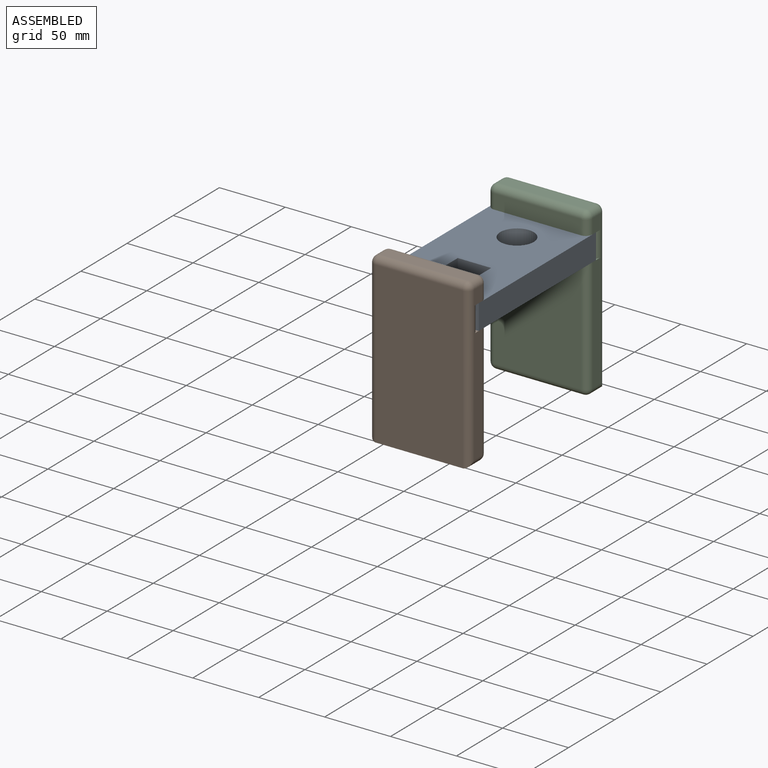
[diagram: assembled view]
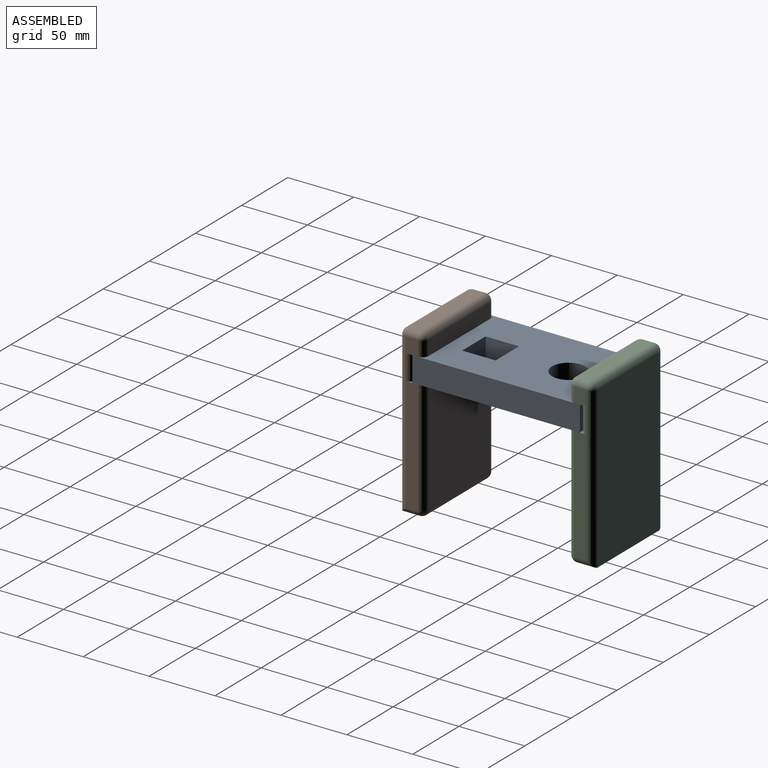
[diagram: assembled view, second angle]
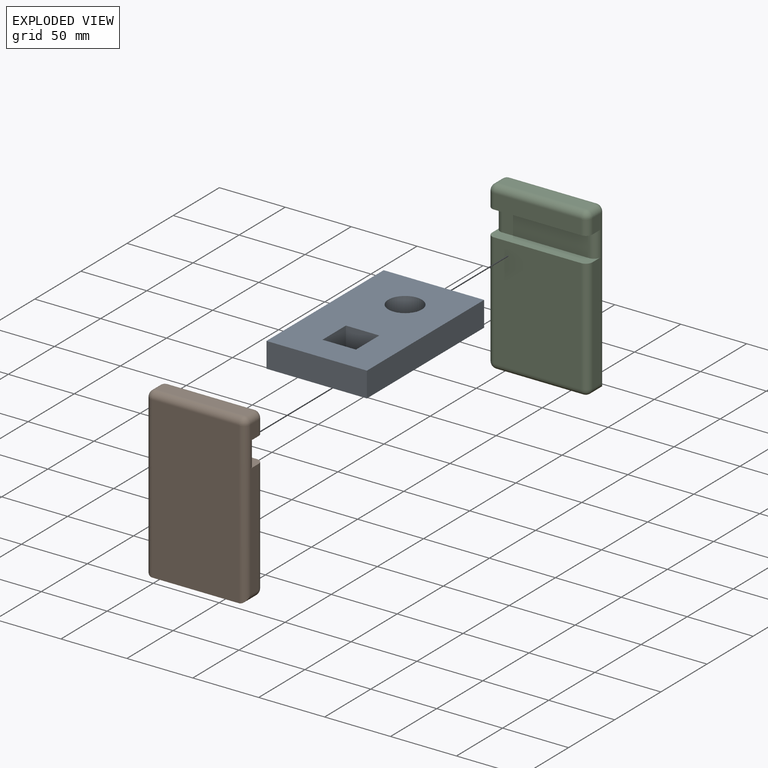
[diagram: exploded view]
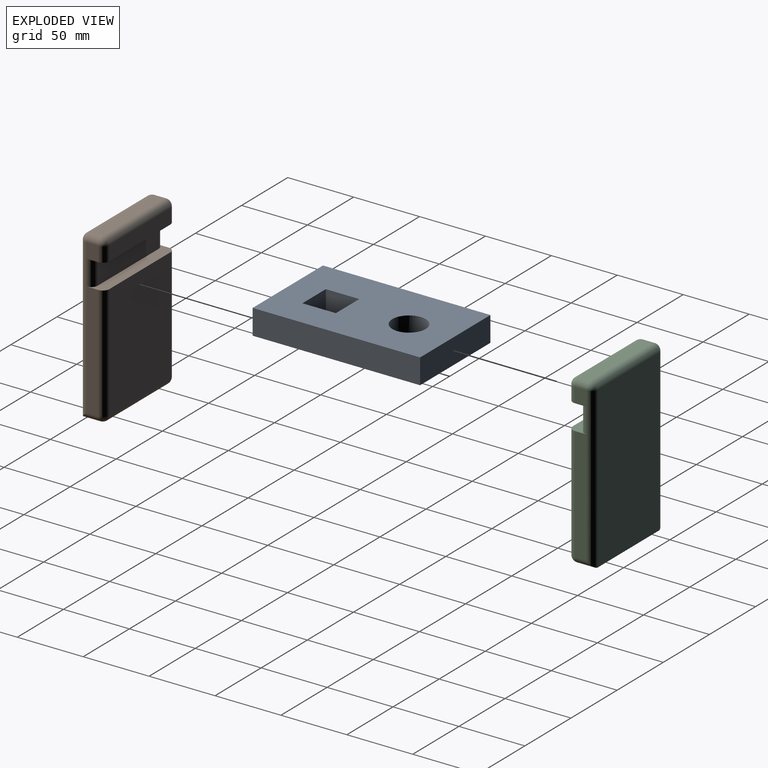
[diagram: exploded view, second angle]
ASSEMBLY  parts=3 mates=2
PART A: 11 faces, bbox 76.2x19.1x127 mm
  f0: plane 127x19.05mm, normal (-1,0,0), area 2419.3mm2, adj f1,f3,f4,f5
  f1: plane 76.2x19.05mm, normal (0,0,-1), area 1451.6mm2, adj f0,f2,f4,f5
  f2: plane 127x19.05mm, normal (1,0,0), area 2419.3mm2, adj f1,f3,f4,f5
  f3: plane 76.2x19.05mm, normal (0,0,1), area 1451.6mm2, adj f0,f2,f4,f5
  f4: plane 127x76.2mm, normal (0,-1,0), area 8525.5mm2, adj f0,f1,f2,f3,f6,f7,f8,f9
  f5: plane 127x76.2mm, normal (0,1,0), area 8525.5mm2, adj f0,f1,f2,f3,f6,f7,f8,f9
  f6: cylinder r=12.7mm len=25.4mm, axis (0,-1,0), area 1520.1mm2, adj f4,f5
  f7: plane 25.4x19.05mm, normal (-1,0,0), area 483.9mm2, adj f4,f5,f8,f10
  f8: plane 25.4x19.05mm, normal (0,0,-1), area 483.9mm2, adj f4,f5,f7,f9
  f9: plane 25.4x19.05mm, normal (1,0,0), area 483.9mm2, adj f4,f5,f8,f10
  f10: plane 25.4x19.05mm, normal (0,0,1), area 483.9mm2, adj f4,f5,f7,f9
PART B: 31 faces, bbox 19.1x76.2x127 mm
  f0: plane 11.21x8.89mm, normal (0,1,0), area 99.7mm2, adj f10,f17,f23,f24
  f1: plane 11.21x8.89mm, normal (0,-1,0), area 99.7mm2, adj f10,f19,f27,f30
  f2: plane 86.58x66.04mm, normal (1,0,0), area 5717.6mm2, adj f9,f12,f14,f15
  f3: plane 86.58x8.89mm, normal (0,-1,0), area 769.7mm2, adj f9,f14,f19,f20
  f4: plane 66.04x8.89mm, normal (0,0,1), area 587.1mm2, adj f22,f23,f27,f28
  f5: plane 121.92x66.04mm, normal (-1,0,0), area 8051.6mm2, adj f6,f17,f19,f22
  f6: plane 66.04x13.97mm, normal (0,0,-1), area 922.6mm2, adj f5,f15,f16,f20
  f7: plane 66.04x11.21mm, normal (1,0,0), area 740.4mm2, adj f10,f24,f28,f30
  f8: plane 86.58x8.89mm, normal (0,1,0), area 769.7mm2, adj f9,f12,f16,f17
  f9: plane 76.2x13.97mm, normal (0,0,1), area 677.4mm2, adj f2,f3,f8,f11,f12,f14,f17,f19
  f10: plane 76.2x13.97mm, normal (0,0,-1), area 677.4mm2, adj f0,f1,f7,f11,f17,f19,f24,f30
  f11: plane 66.04x19.05mm, normal (1,0,0), area 1258.1mm2, adj f9,f10,f17,f19
  f12: cylinder r=5.08mm len=86.58mm, axis (0,0,1), area 690.9mm2, adj f2,f8,f9,f13
  f13: sphere r=5.08mm, area 40.5mm2, adj f12,f15,f16
  f14: cylinder r=5.08mm len=86.58mm, axis (0,0,-1), area 690.9mm2, adj f2,f3,f9,f18
  f15: cylinder r=5.08mm len=66.04mm, axis (0,1,0), area 527mm2, adj f2,f6,f13,f18
  f16: cylinder r=5.08mm len=13.97mm, axis (1,0,0), area 96.7mm2, adj f6,f8,f13,f17
  f17: cylinder r=5.08mm len=121.92mm, axis (0,0,-1), area 1110.2mm2, adj f0,f5,f8,f9,f10,f11,f16,f21
  f18: sphere r=5.08mm, area 40.5mm2, adj f14,f15,f20
  f19: cylinder r=5.08mm len=121.92mm, axis (0,0,1), area 1110.2mm2, adj f1,f3,f5,f9,f10,f11,f20,f25
  f20: cylinder r=5.08mm len=13.97mm, axis (-1,0,0), area 96.7mm2, adj f3,f6,f18,f19
  f21: sphere r=5.08mm, area 40.5mm2, adj f17,f22,f23
  f22: cylinder r=5.08mm len=66.04mm, axis (0,1,0), area 527mm2, adj f4,f5,f21,f25
  f23: cylinder r=5.08mm len=8.89mm, axis (-1,0,0), area 70.9mm2, adj f0,f4,f21,f26
  f24: cylinder r=5.08mm len=11.21mm, axis (0,0,1), area 89.5mm2, adj f0,f7,f10,f26
  f25: sphere r=5.08mm, area 40.5mm2, adj f19,f22,f27
  f26: sphere r=5.08mm, area 40.5mm2, adj f23,f24,f28
  f27: cylinder r=5.08mm len=8.89mm, axis (1,0,0), area 70.9mm2, adj f1,f4,f25,f29
  f28: cylinder r=5.08mm len=66.04mm, axis (0,-1,0), area 527mm2, adj f4,f7,f26,f29
  f29: sphere r=5.08mm, area 40.5mm2, adj f27,f28,f30
  f30: cylinder r=5.08mm len=11.21mm, axis (0,0,-1), area 89.5mm2, adj f1,f7,f10,f29
PART C: same geometry as B
PLACE A rot(axis=(0,0.71,-0.71),180deg) t=(60.69,-92.57,11.39)mm
PLACE B rot(axis=(0,0,1),90deg) t=(43.31,-85.94,-26.8)mm
PLACE C rot(axis=(0,0,-1),90deg) t=(119.51,-80.31,-26.8)mm
MATE planar A.f1 <-> C.f11  axis (0,1,0) through (81.41,-19.62,20.91)mm
MATE planar B.f11 <-> A.f3  axis (0,1,0) through (81.41,-146.62,20.91)mm
